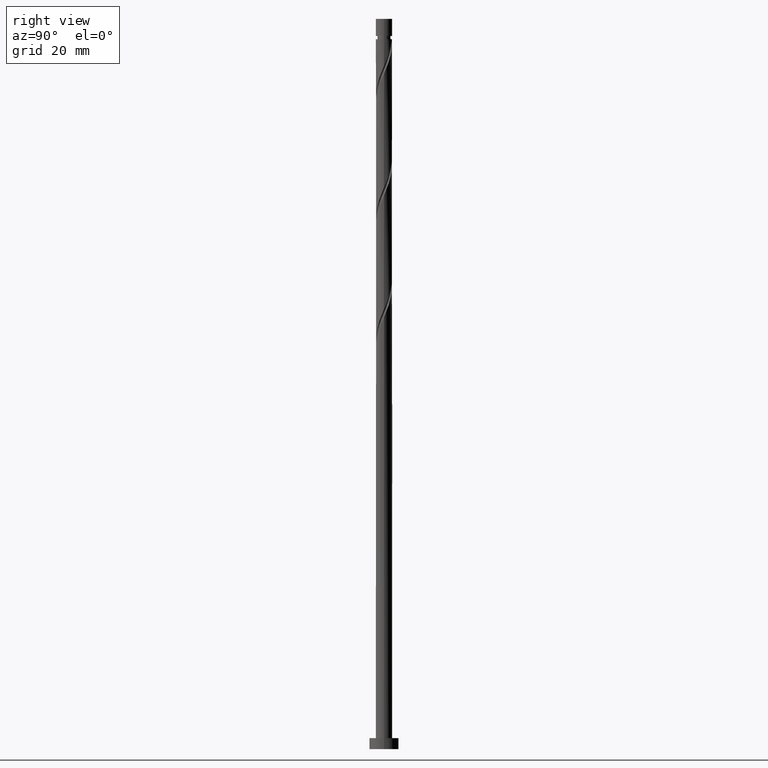
[diagram: clean part render]
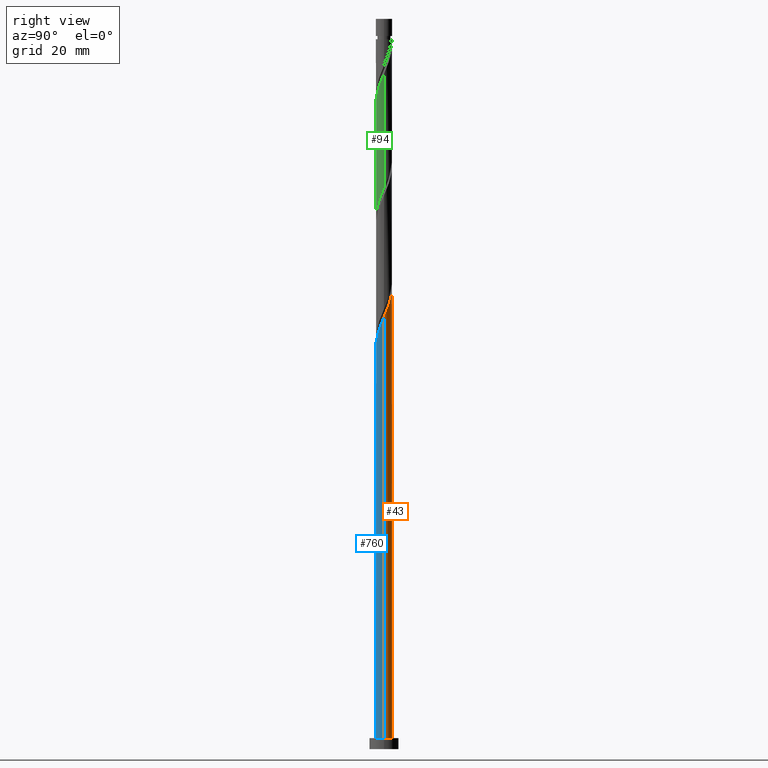
[diagram: same view with three faces highlighted in distinct colors, each labeled with its STEP entity id]
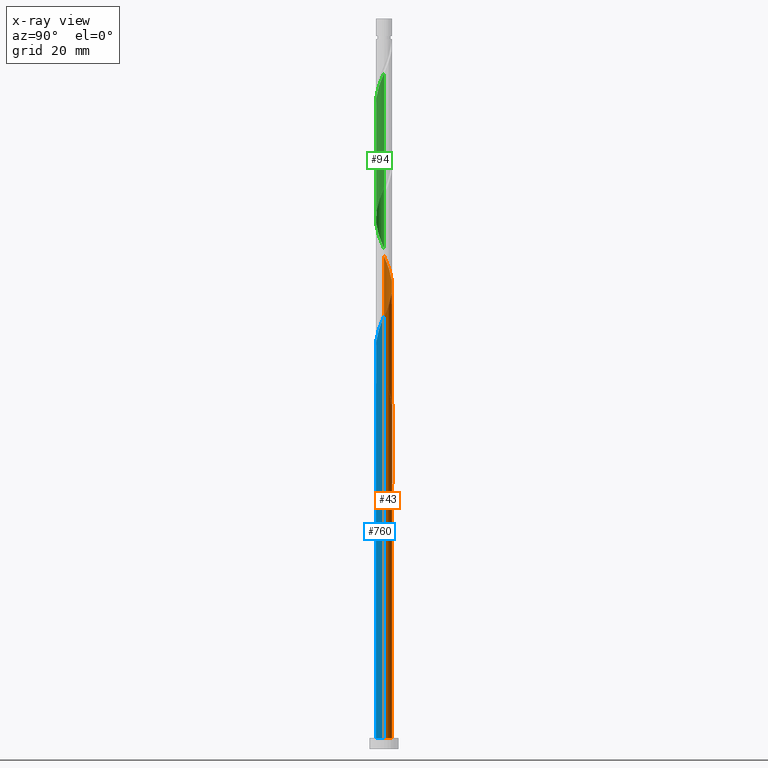
[diagram: x-ray of the same camera — body ghosted, the three highlighted faces saturated]
A machine part, right view with three faces highlighted in distinct colors.
The next image is the same camera in x-ray (body ghosted, the three faces saturated) — at least one of them is partly hidden behind the body in this view.
Their STEP definitions:

[orange] entity #43 — the highlighted cylindrical surface (edge-blend (fillet) strip) has radius 2.25 mm, axis along (-0, -0, -1).
#4 = EDGE_CURVE ( 'NONE', #91, #1153, #141, .T. ) ;
#7 = CARTESIAN_POINT ( 'NONE',  ( -2.245751211229821465, 0.1382081664005538058, 101.3486371687581027 ) ) ;
#17 = CARTESIAN_POINT ( 'NONE',  ( -1.712186416157698066, 1.489517657058026634, 97.87641494653587415 ) ) ;
#38 = CARTESIAN_POINT ( 'NONE',  ( -0.4338669223188778012, 2.227555760936211104, 96.48752605764698842 ) ) ;
#43 = ADVANCED_FACE ( 'NONE', ( #878 ), #231, .T. ) ;
#50 = VERTEX_POINT ( 'NONE', #916 ) ;
#53 = CARTESIAN_POINT ( 'NONE',  ( 0.9956171203984893747, 2.039360616451145525, 124.2653038354247315 ) ) ;
#54 = CARTESIAN_POINT ( 'NONE',  ( -2.205000000000000071, 0.4477443466979803000, 102.7375260576470168 ) ) ;
#61 = CARTESIAN_POINT ( 'NONE',  ( -2.250000000000000444, 3.155248517603818449E-15, 103.8010927128570557 ) ) ;
#69 = CARTESIAN_POINT ( 'NONE',  ( 0.7147420213586845872, 2.133458188693679425, 124.9597482798691885 ) ) ;
#91 = VERTEX_POINT ( 'NONE', #1047 ) ;
#111 = DIRECTION ( 'NONE',  ( 0.000000000000000000, 0.000000000000000000, 1.000000000000000000 ) ) ;
#141 = LINE ( 'NONE', #1427, #1426 ) ;
#144 = VERTEX_POINT ( 'NONE', #188 ) ;
#155 = CARTESIAN_POINT ( 'NONE',  ( -2.250000000000003109, 4.321643704206142327E-15, 101.6739594024369069 ) ) ;
#175 = CARTESIAN_POINT ( 'NONE',  ( 1.489517657058027522, 1.712186416157696955, 122.8764149465358599 ) ) ;
#187 = VECTOR ( 'NONE', #877, 1000.000000000000000 ) ;
#188 = CARTESIAN_POINT ( 'NONE',  ( -2.250000000000003109, 4.321643704206142327E-15, 101.6739594024369069 ) ) ;
#193 = CARTESIAN_POINT ( 'NONE',  ( -1.490257978641319703, 1.685713841995699847, 130.5153038354247599 ) ) ;
#201 = CARTESIAN_POINT ( 'NONE',  ( -2.245751211229821465, 0.1382081664005538058, 134.6819705020914171 ) ) ;
#231 = CYLINDRICAL_SURFACE ( 'NONE', #993, 2.250000000000000000 ) ;
#273 = CARTESIAN_POINT ( 'NONE',  ( -1.003183822501564793, 2.013981682704975462, 95.79308161320253134 ) ) ;
#284 = CARTESIAN_POINT ( 'NONE',  ( -0.7380381038781885783, 2.146053338476577199, 95.09863716875806006 ) ) ;
#324 = CARTESIAN_POINT ( 'NONE',  ( 1.242567388728257782, 1.875773516304421795, 123.5708593909803312 ) ) ;
#331 = CARTESIAN_POINT ( 'NONE',  ( -0.1574505895177698012, 2.263946661523429160, 127.0430816132025171 ) ) ;
#341 = CARTESIAN_POINT ( 'NONE',  ( -2.227555760936213769, 0.4338669223188788560, 133.9875260576469600 ) ) ;
#355 = CARTESIAN_POINT ( 'NONE',  ( 2.250000000000000000, 2.755455298081544285E-16, 3.000000000000000000 ) ) ;
#387 = EDGE_CURVE ( 'NONE', #50, #1310, #1132, .T. ) ;
#426 = CARTESIAN_POINT ( 'NONE',  ( -2.039360616451145525, 0.9956171203984882645, 99.26530383542474567 ) ) ;
#433 = CARTESIAN_POINT ( 'NONE',  ( -2.227555760936213769, 0.4338669223188788560, 100.6541927243136740 ) ) ;
#443 = CARTESIAN_POINT ( 'NONE',  ( -1.875773516304422239, 1.242567388728257116, 98.57085939098031702 ) ) ;
#444 = VERTEX_POINT ( 'NONE', #1025 ) ;
#455 = CARTESIAN_POINT ( 'NONE',  ( 1.881910026933373947, 1.268329541124939785, 121.4875260576469742 ) ) ;
#470 = CARTESIAN_POINT ( 'NONE',  ( -1.268329541124940896, 1.881910026933373725, 129.8208593909802744 ) ) ;
#490 = CARTESIAN_POINT ( 'NONE',  ( -2.250000000000000000, 0.000000000000000000, 200.0000000000000000 ) ) ;
#539 = ORIENTED_EDGE ( 'NONE', *, *, #387, .T. ) ;
#542 = VECTOR ( 'NONE', #998, 1000.000000000000000 ) ;
#579 = CARTESIAN_POINT ( 'NONE',  ( -0.7147420213586817006, 2.133458188693676760, 97.18197050209145971 ) ) ;
#596 = CARTESIAN_POINT ( 'NONE',  ( -1.712186416157698066, 1.489517657058026634, 131.2097482798691885 ) ) ;
#598 = CARTESIAN_POINT ( 'NONE',  ( -2.146053338476573202, 0.7380381038781881342, 102.0430816132025313 ) ) ;
#617 = CARTESIAN_POINT ( 'NONE',  ( 0.000000000000000000, 0.000000000000000000, 200.0000000000000000 ) ) ;
#686 = EDGE_LOOP ( 'NONE', ( #872, #1076, #759, #1342, #1420, #539, #1039, #1011 ) ) ;
#703 = CARTESIAN_POINT ( 'NONE',  ( -1.489517657058022859, 1.712186416157696067, 99.26530383542478830 ) ) ;
#705 = CIRCLE ( 'NONE', #1441, 2.250000000000000000 ) ;
#706 = CARTESIAN_POINT ( 'NONE',  ( 2.250000000000003553, 5.009517788612656361E-16, 118.3406260691035783 ) ) ;
#708 = EDGE_CURVE ( 'NONE', #144, #775, #1240, .T. ) ;
#714 = CARTESIAN_POINT ( 'NONE',  ( -1.875773516304422239, 1.242567388728257116, 131.9041927243136172 ) ) ;
#759 = ORIENTED_EDGE ( 'NONE', *, *, #1561, .T. ) ;
#775 = VERTEX_POINT ( 'NONE', #967 ) ;
#836 = CARTESIAN_POINT ( 'NONE',  ( 2.250000000000003553, 0.2261335084333213619, 118.8740524382928498 ) ) ;
#845 = CARTESIAN_POINT ( 'NONE',  ( -0.4477443466979798004, 2.205000000000003624, 127.7375260576469742 ) ) ;
#851 = CARTESIAN_POINT ( 'NONE',  ( -2.250000000000002665, 0.06916939122976893672, 134.8441290477420580 ) ) ;
#872 = ORIENTED_EDGE ( 'NONE', *, *, #1166, .F. ) ;
#877 = DIRECTION ( 'NONE',  ( -0.000000000000000000, -0.000000000000000000, -1.000000000000000000 ) ) ;
#878 = FACE_OUTER_BOUND ( 'NONE', #686, .T. ) ;
#881 = CARTESIAN_POINT ( 'NONE',  ( -0.4477443466979799669, 2.205000000000003624, 94.40419272431365982 ) ) ;
#907 = AXIS2_PLACEMENT_3D ( 'NONE', #1261, #1424, #974 ) ;
#916 = CARTESIAN_POINT ( 'NONE',  ( -0.4477443466979799669, 2.205000000000003624, 94.40419272431365982 ) ) ;
#920 = CARTESIAN_POINT ( 'NONE',  ( 0.000000000000000000, 0.000000000000000000, 3.000000000000000000 ) ) ;
#962 = CARTESIAN_POINT ( 'NONE',  ( 0.4477443466979806330, 2.205000000000000071, 94.40419272431365982 ) ) ;
#967 = CARTESIAN_POINT ( 'NONE',  ( -2.250000000000000000, 0.000000000000000000, 3.000000000000000000 ) ) ;
#974 = DIRECTION ( 'NONE',  ( 0.000000000000000000, 1.000000000000000000, -1.850371707708594129E-14 ) ) ;
#979 = CARTESIAN_POINT ( 'NONE',  ( -2.039360616451145525, 0.9956171203984882645, 132.5986371687580743 ) ) ;
#982 = CARTESIAN_POINT ( 'NONE',  ( -1.881910026933370172, 1.268329541124939785, 100.6541927243136882 ) ) ;
#993 = AXIS2_PLACEMENT_3D ( 'NONE', #617, #1568, #1327 ) ;
#998 = DIRECTION ( 'NONE',  ( -0.000000000000000000, -0.000000000000000000, -1.000000000000000000 ) ) ;
#1011 = ORIENTED_EDGE ( 'NONE', *, *, #1464, .F. ) ;
#1022 = CARTESIAN_POINT ( 'NONE',  ( -2.250000000000000000, 0.000000000000000000, 200.0000000000000000 ) ) ;
#1025 = CARTESIAN_POINT ( 'NONE',  ( -2.250000000000003109, 4.321643704206142327E-15, 135.0072927357702497 ) ) ;
#1039 = ORIENTED_EDGE ( 'NONE', *, *, #1267, .F. ) ;
#1047 = CARTESIAN_POINT ( 'NONE',  ( 2.250000000000003109, 5.009517788612656361E-16, 118.3406260691035783 ) ) ;
#1076 = ORIENTED_EDGE ( 'NONE', *, *, #4, .T. ) ;
#1090 = CARTESIAN_POINT ( 'NONE',  ( 0.1574505895177722714, 2.263946661523425163, 95.09863716875808848 ) ) ;
#1093 = CARTESIAN_POINT ( 'NONE',  ( 2.013981682704975906, 1.003183822501563682, 120.7930816132025456 ) ) ;
#1101 = CARTESIAN_POINT ( 'NONE',  ( -0.9956171203984859330, 2.039360616451142416, 97.87641494653588836 ) ) ;
#1103 = CARTESIAN_POINT ( 'NONE',  ( 2.146053338476577643, 0.7380381038781878011, 120.0986371687580743 ) ) ;
#1113 = CARTESIAN_POINT ( 'NONE',  ( -2.013981682704971909, 1.003183822501563904, 101.3486371687581169 ) ) ;
#1132 = CIRCLE ( 'NONE', #907, 2.250000000000000000 ) ;
#1147 = LINE ( 'NONE', #1022, #187 ) ;
#1153 = VERTEX_POINT ( 'NONE', #355 ) ;
#1166 = EDGE_CURVE ( 'NONE', #91, #444, #1300, .T. ) ;
#1192 = CARTESIAN_POINT ( 'NONE',  ( -2.133458188693680313, 0.7147420213586839211, 99.95974827986920275 ) ) ;
#1233 = CARTESIAN_POINT ( 'NONE',  ( 1.685713841995700513, 1.490257978641318370, 122.1819705020914455 ) ) ;
#1235 = CARTESIAN_POINT ( 'NONE',  ( -2.249999999999999556, 0.2261335084333251089, 103.2676663436677984 ) ) ;
#1240 = LINE ( 'NONE', #490, #542 ) ;
#1252 = CARTESIAN_POINT ( 'NONE',  ( -2.250000000000003109, 4.321643704206142327E-15, 135.0072927357702497 ) ) ;
#1261 = CARTESIAN_POINT ( 'NONE',  ( 0.000000000000000000, 0.000000000000000000, 94.40419272431368825 ) ) ;
#1267 = EDGE_CURVE ( 'NONE', #1744, #1310, #1681, .T. ) ;
#1300 =( BOUNDED_CURVE ( )  B_SPLINE_CURVE ( 2, ( #706, #836, #1507, #1103, #1093, #455, #1233, #175, #324, #53, #69, #1658, #1516, #331, #845, #1392, #1380, #470, #193, #596, #714, #979, #1527, #341, #201, #851, #1252 ),
 .UNSPECIFIED., .F., .T. ) 
 B_SPLINE_CURVE_WITH_KNOTS ( ( 3, 2, 2, 2, 2, 2, 2, 2, 2, 2, 2, 2, 2, 3 ),
 ( 0.1795317669814462946, 0.1875000000000000000, 0.1979166666666666297, 0.2083333333333333703, 0.2187500000000000000, 0.2291666666666666297, 0.2395833333333333703, 0.2500000000000000000, 0.2604166666666666297, 0.2708333333333333703, 0.2812500000000000000, 0.2916666666666666297, 0.3020833333333333703, 0.3045317669814461836 ),
 .UNSPECIFIED. ) 
 CURVE ( )  GEOMETRIC_REPRESENTATION_ITEM ( )  RATIONAL_B_SPLINE_CURVE ( ( 0.9062941362546576007, 0.9031415850403619050, 0.9090909090909373713, 0.9013135103398557391, 0.9090909090909373713, 0.9013135103398557391, 0.9090909090909373713, 0.9013135103398557391, 0.9090909090909373713, 0.9013135103398557391, 0.9090909090909373713, 0.9013135103398557391, 0.9090909090909373713, 0.9013135103398557391, 0.9090909090909373713, 0.9013135103398557391, 0.9090909090909373713, 0.9013135103398557391, 0.9090909090909373713, 0.9013135103398557391, 0.9090909090909373713, 0.9013135103398557391, 0.9090909090909373713, 0.9013135103398557391, 0.9090909090909373713, 0.9072628343904312054, 0.9062941362546577118 ) ) 
 REPRESENTATION_ITEM ( '' )  );
#1310 = VERTEX_POINT ( 'NONE', #1388 ) ;
#1318 = DIRECTION ( 'NONE',  ( -0.000000000000000000, -0.000000000000000000, -1.000000000000000000 ) ) ;
#1327 = DIRECTION ( 'NONE',  ( -1.000000000000000000, 0.000000000000000000, 0.000000000000000000 ) ) ;
#1329 = CARTESIAN_POINT ( 'NONE',  ( -1.490257978641319703, 1.685713841995699847, 97.18197050209141707 ) ) ;
#1341 = CARTESIAN_POINT ( 'NONE',  ( -2.250000000000002665, 0.06916939122976951959, 101.5107957144087720 ) ) ;
#1342 = ORIENTED_EDGE ( 'NONE', *, *, #708, .F. ) ;
#1358 = CARTESIAN_POINT ( 'NONE',  ( -0.1382081664005526678, 2.245751211229818800, 95.79308161320255977 ) ) ;
#1360 =( BOUNDED_CURVE ( )  B_SPLINE_CURVE ( 2, ( #881, #284, #273, #1601, #1329, #17, #443, #426, #1192, #433, #7, #1341, #155 ),
 .UNSPECIFIED., .F., .T. ) 
 B_SPLINE_CURVE_WITH_KNOTS ( ( 3, 2, 2, 2, 2, 2, 3 ),
 ( 0.000000000000000000, 0.01041666666666662966, 0.02083333333333337034, 0.03125000000000000000, 0.04166666666666662966, 0.05208333333333337034, 0.05453176698144616280 ),
 .UNSPECIFIED. ) 
 CURVE ( )  GEOMETRIC_REPRESENTATION_ITEM ( )  RATIONAL_B_SPLINE_CURVE ( ( 0.9090909090909373713, 0.9013135103398557391, 0.9090909090909373713, 0.9013135103398557391, 0.9090909090909373713, 0.9013135103398557391, 0.9090909090909373713, 0.9013135103398557391, 0.9090909090909373713, 0.9013135103398557391, 0.9090909090909373713, 0.9072628343904312054, 0.9062941362546577118 ) ) 
 REPRESENTATION_ITEM ( '' )  );
#1380 = CARTESIAN_POINT ( 'NONE',  ( -1.003183822501564793, 2.013981682704975462, 129.1264149465358173 ) ) ;
#1388 = CARTESIAN_POINT ( 'NONE',  ( 0.4477443466979806330, 2.205000000000000071, 94.40419272431365982 ) ) ;
#1392 = CARTESIAN_POINT ( 'NONE',  ( -0.7380381038781885783, 2.146053338476577199, 128.4319705020913887 ) ) ;
#1406 = EDGE_CURVE ( 'NONE', #50, #144, #1360, .T. ) ;
#1420 = ORIENTED_EDGE ( 'NONE', *, *, #1406, .F. ) ;
#1424 = DIRECTION ( 'NONE',  ( -1.027162637006525975E-29, -1.541976423090496107E-14, -1.000000000000000000 ) ) ;
#1426 = VECTOR ( 'NONE', #1318, 1000.000000000000000 ) ;
#1427 = CARTESIAN_POINT ( 'NONE',  ( 2.250000000000000000, 2.755455298081544285E-16, 200.0000000000000000 ) ) ;
#1441 = AXIS2_PLACEMENT_3D ( 'NONE', #920, #111, #1583 ) ;
#1450 = CARTESIAN_POINT ( 'NONE',  ( -2.250000000000000000, 3.155248517603818449E-15, 103.8010927128570557 ) ) ;
#1464 = EDGE_CURVE ( 'NONE', #444, #1744, #1147, .T. ) ;
#1499 = CARTESIAN_POINT ( 'NONE',  ( -1.242567388728255118, 1.875773516304420019, 98.57085939098033123 ) ) ;
#1507 = CARTESIAN_POINT ( 'NONE',  ( 2.205000000000003624, 0.4477443466979798559, 119.4041927243136456 ) ) ;
#1516 = CARTESIAN_POINT ( 'NONE',  ( 0.1382081664005552768, 2.245751211229821465, 126.3486371687580743 ) ) ;
#1527 = CARTESIAN_POINT ( 'NONE',  ( -2.133458188693680313, 0.7147420213586839211, 133.2930816132025029 ) ) ;
#1529 = CARTESIAN_POINT ( 'NONE',  ( -1.685713841995696960, 1.490257978641317704, 99.95974827986924538 ) ) ;
#1561 = EDGE_CURVE ( 'NONE', #1153, #775, #705, .T. ) ;
#1568 = DIRECTION ( 'NONE',  ( -0.000000000000000000, -0.000000000000000000, -1.000000000000000000 ) ) ;
#1583 = DIRECTION ( 'NONE',  ( 1.000000000000000000, 0.000000000000000000, 0.000000000000000000 ) ) ;
#1601 = CARTESIAN_POINT ( 'NONE',  ( -1.268329541124940896, 1.881910026933373725, 96.48752605764698842 ) ) ;
#1658 = CARTESIAN_POINT ( 'NONE',  ( 0.4338669223188802437, 2.227555760936213769, 125.6541927243136314 ) ) ;
#1681 =( BOUNDED_CURVE ( )  B_SPLINE_CURVE ( 2, ( #61, #1235, #54, #598, #1113, #982, #1529, #703, #1499, #1101, #579, #38, #1358, #1090, #962 ),
 .UNSPECIFIED., .F., .T. ) 
 B_SPLINE_CURVE_WITH_KNOTS ( ( 3, 2, 2, 2, 2, 2, 2, 3 ),
 ( 0.9295317669814463502, 0.9375000000000000000, 0.9479166666666666297, 0.9583333333333333703, 0.9687500000000000000, 0.9791666666666666297, 0.9895833333333333703, 1.000000000000000000 ),
 .UNSPECIFIED. ) 
 CURVE ( )  GEOMETRIC_REPRESENTATION_ITEM ( )  RATIONAL_B_SPLINE_CURVE ( ( 0.9062941362546501622, 0.9031415850403544665, 0.9090909090909298218, 0.9013135103398483006, 0.9090909090909298218, 0.9013135103398483006, 0.9090909090909298218, 0.9013135103398483006, 0.9090909090909298218, 0.9013135103398483006, 0.9090909090909298218, 0.9013135103398483006, 0.9090909090909298218, 0.9013135103398483006, 0.9090909090909298218 ) ) 
 REPRESENTATION_ITEM ( '' )  );
#1744 = VERTEX_POINT ( 'NONE', #1450 ) ;

[blue] entity #760 — the highlighted cylindrical surface (edge-blend (fillet) strip) has radius 2.25 mm, axis along (-0, -0, -1).
#4 = EDGE_CURVE ( 'NONE', #91, #1153, #141, .T. ) ;
#55 = DIRECTION ( 'NONE',  ( -1.000000000000000000, 0.000000000000000000, 0.000000000000000000 ) ) ;
#91 = VERTEX_POINT ( 'NONE', #1047 ) ;
#141 = LINE ( 'NONE', #1427, #1426 ) ;
#144 = VERTEX_POINT ( 'NONE', #188 ) ;
#147 = CARTESIAN_POINT ( 'NONE',  ( -0.9956171203984888196, -2.039360616451145525, 107.5986371687581027 ) ) ;
#188 = CARTESIAN_POINT ( 'NONE',  ( -2.250000000000003109, 4.321643704206142327E-15, 101.6739594024369069 ) ) ;
#199 = CARTESIAN_POINT ( 'NONE',  ( -0.4338669223188790780, -2.227555760936213769, 108.9875260576469884 ) ) ;
#245 = CARTESIAN_POINT ( 'NONE',  ( 1.003183822501563904, -2.013981682704975906, 112.4597482798692027 ) ) ;
#263 = CARTESIAN_POINT ( 'NONE',  ( 2.250000000000003997, -0.06916939122976727139, 118.1774623810754434 ) ) ;
#282 = CARTESIAN_POINT ( 'NONE',  ( 0.7380381038781879122, -2.146053338476577643, 111.7653038354247741 ) ) ;
#288 = CARTESIAN_POINT ( 'NONE',  ( -1.489517657058026634, -1.712186416157697622, 106.2097482798691885 ) ) ;
#307 =( BOUNDED_CURVE ( )  B_SPLINE_CURVE ( 2, ( #1750, #1333, #1606, #927, #1474, #1524, #1378, #288, #429, #147, #1627, #199, #719, #763, #1673, #282, #245, #1591, #895, #1304, #650, #1164, #758, #1729, #1294, #263, #410 ),
 .UNSPECIFIED., .F., .T. ) 
 B_SPLINE_CURVE_WITH_KNOTS ( ( 3, 2, 2, 2, 2, 2, 2, 2, 2, 2, 2, 2, 2, 3 ),
 ( 0.05453176698144616280, 0.06250000000000000000, 0.07291666666666662966, 0.08333333333333337034, 0.09375000000000000000, 0.1041666666666666297, 0.1145833333333333703, 0.1250000000000000000, 0.1354166666666666297, 0.1458333333333333703, 0.1562500000000000000, 0.1666666666666666297, 0.1770833333333333703, 0.1795317669814462946 ),
 .UNSPECIFIED. ) 
 CURVE ( )  GEOMETRIC_REPRESENTATION_ITEM ( )  RATIONAL_B_SPLINE_CURVE ( ( 0.9062941362546577118, 0.9031415850403619050, 0.9090909090909373713, 0.9013135103398557391, 0.9090909090909373713, 0.9013135103398557391, 0.9090909090909373713, 0.9013135103398557391, 0.9090909090909373713, 0.9013135103398557391, 0.9090909090909373713, 0.9013135103398557391, 0.9090909090909373713, 0.9013135103398557391, 0.9090909090909373713, 0.9013135103398557391, 0.9090909090909373713, 0.9013135103398557391, 0.9090909090909373713, 0.9013135103398557391, 0.9090909090909373713, 0.9013135103398557391, 0.9090909090909373713, 0.9013135103398557391, 0.9090909090909373713, 0.9072628343904310944, 0.9062941362546576007 ) ) 
 REPRESENTATION_ITEM ( '' )  );
#351 = AXIS2_PLACEMENT_3D ( 'NONE', #1647, #359, #55 ) ;
#355 = CARTESIAN_POINT ( 'NONE',  ( 2.250000000000000000, 2.755455298081544285E-16, 3.000000000000000000 ) ) ;
#359 = DIRECTION ( 'NONE',  ( -0.000000000000000000, -0.000000000000000000, -1.000000000000000000 ) ) ;
#410 = CARTESIAN_POINT ( 'NONE',  ( 2.250000000000003553, 5.009517788612656361E-16, 118.3406260691035783 ) ) ;
#429 = CARTESIAN_POINT ( 'NONE',  ( -1.242567388728257116, -1.875773516304422239, 106.9041927243136456 ) ) ;
#434 = ORIENTED_EDGE ( 'NONE', *, *, #708, .T. ) ;
#490 = CARTESIAN_POINT ( 'NONE',  ( -2.250000000000000000, 0.000000000000000000, 200.0000000000000000 ) ) ;
#542 = VECTOR ( 'NONE', #998, 1000.000000000000000 ) ;
#581 = AXIS2_PLACEMENT_3D ( 'NONE', #1711, #905, #898 ) ;
#650 = CARTESIAN_POINT ( 'NONE',  ( 1.875773516304421573, -1.242567388728258004, 115.2375260576469742 ) ) ;
#708 = EDGE_CURVE ( 'NONE', #144, #775, #1240, .T. ) ;
#719 = CARTESIAN_POINT ( 'NONE',  ( -0.1382081664005539168, -2.245751211229821465, 109.6819705020914455 ) ) ;
#758 = CARTESIAN_POINT ( 'NONE',  ( 2.133458188693679869, -0.7147420213586845872, 116.6264149465358742 ) ) ;
#760 = ADVANCED_FACE ( 'NONE', ( #1114 ), #1362, .T. ) ;
#763 = CARTESIAN_POINT ( 'NONE',  ( 0.1574505895177711612, -2.263946661523429160, 110.3764149465358742 ) ) ;
#775 = VERTEX_POINT ( 'NONE', #967 ) ;
#782 = EDGE_LOOP ( 'NONE', ( #1189, #1723, #434, #1135 ) ) ;
#895 = CARTESIAN_POINT ( 'NONE',  ( 1.490257978641319259, -1.685713841995700069, 113.8486371687580885 ) ) ;
#898 = DIRECTION ( 'NONE',  ( 1.000000000000000000, 0.000000000000000000, 0.000000000000000000 ) ) ;
#905 = DIRECTION ( 'NONE',  ( 0.000000000000000000, 0.000000000000000000, 1.000000000000000000 ) ) ;
#927 = CARTESIAN_POINT ( 'NONE',  ( -2.146053338476577643, -0.7380381038781881342, 103.4319705020914171 ) ) ;
#967 = CARTESIAN_POINT ( 'NONE',  ( -2.250000000000000000, 0.000000000000000000, 3.000000000000000000 ) ) ;
#998 = DIRECTION ( 'NONE',  ( -0.000000000000000000, -0.000000000000000000, -1.000000000000000000 ) ) ;
#1047 = CARTESIAN_POINT ( 'NONE',  ( 2.250000000000003109, 5.009517788612656361E-16, 118.3406260691035783 ) ) ;
#1114 = FACE_OUTER_BOUND ( 'NONE', #782, .T. ) ;
#1135 = ORIENTED_EDGE ( 'NONE', *, *, #1703, .T. ) ;
#1153 = VERTEX_POINT ( 'NONE', #355 ) ;
#1164 = CARTESIAN_POINT ( 'NONE',  ( 2.039360616451145525, -0.9956171203984888196, 115.9319705020914171 ) ) ;
#1189 = ORIENTED_EDGE ( 'NONE', *, *, #4, .F. ) ;
#1240 = LINE ( 'NONE', #490, #542 ) ;
#1294 = CARTESIAN_POINT ( 'NONE',  ( 2.245751211229821465, -0.1382081664005551935, 118.0153038354247599 ) ) ;
#1304 = CARTESIAN_POINT ( 'NONE',  ( 1.712186416157697622, -1.489517657058026634, 114.5430816132025171 ) ) ;
#1318 = DIRECTION ( 'NONE',  ( -0.000000000000000000, -0.000000000000000000, -1.000000000000000000 ) ) ;
#1324 = EDGE_CURVE ( 'NONE', #144, #91, #307, .T. ) ;
#1333 = CARTESIAN_POINT ( 'NONE',  ( -2.250000000000003997, -0.2261335084333190582, 102.2073857716261500 ) ) ;
#1362 = CYLINDRICAL_SURFACE ( 'NONE', #351, 2.250000000000000000 ) ;
#1378 = CARTESIAN_POINT ( 'NONE',  ( -1.685713841995699847, -1.490257978641319259, 105.5153038354247457 ) ) ;
#1426 = VECTOR ( 'NONE', #1318, 1000.000000000000000 ) ;
#1427 = CARTESIAN_POINT ( 'NONE',  ( 2.250000000000000000, 2.755455298081544285E-16, 200.0000000000000000 ) ) ;
#1470 = CIRCLE ( 'NONE', #581, 2.250000000000000000 ) ;
#1474 = CARTESIAN_POINT ( 'NONE',  ( -2.013981682704975462, -1.003183822501564570, 104.1264149465358742 ) ) ;
#1524 = CARTESIAN_POINT ( 'NONE',  ( -1.881910026933373725, -1.268329541124940674, 104.8208593909802886 ) ) ;
#1591 = CARTESIAN_POINT ( 'NONE',  ( 1.268329541124939785, -1.881910026933373725, 113.1541927243136172 ) ) ;
#1606 = CARTESIAN_POINT ( 'NONE',  ( -2.205000000000003624, -0.4477443466979801334, 102.7375260576469742 ) ) ;
#1627 = CARTESIAN_POINT ( 'NONE',  ( -0.7147420213586841431, -2.133458188693679869, 108.2930816132025456 ) ) ;
#1647 = CARTESIAN_POINT ( 'NONE',  ( 0.000000000000000000, 0.000000000000000000, 200.0000000000000000 ) ) ;
#1673 = CARTESIAN_POINT ( 'NONE',  ( 0.4477443466979800779, -2.205000000000003624, 111.0708593909803170 ) ) ;
#1703 = EDGE_CURVE ( 'NONE', #775, #1153, #1470, .T. ) ;
#1711 = CARTESIAN_POINT ( 'NONE',  ( 0.000000000000000000, 0.000000000000000000, 3.000000000000000000 ) ) ;
#1723 = ORIENTED_EDGE ( 'NONE', *, *, #1324, .F. ) ;
#1729 = CARTESIAN_POINT ( 'NONE',  ( 2.227555760936213769, -0.4338669223188801882, 117.3208593909803170 ) ) ;
#1750 = CARTESIAN_POINT ( 'NONE',  ( -2.250000000000003109, 4.321643704206142327E-15, 101.6739594024369069 ) ) ;

[green] entity #94 — the highlighted cylindrical surface (edge-blend (fillet) strip) has radius 2.25 mm, axis along (-0, -0, -1).
#2 = CARTESIAN_POINT ( 'NONE',  ( 2.133458188693679869, -0.7147420213586845872, 183.2930816132025313 ) ) ;
#57 = CARTESIAN_POINT ( 'NONE',  ( 2.146053338476572314, -0.7380381038781896885, 152.0430816132025313 ) ) ;
#65 = EDGE_CURVE ( 'NONE', #400, #392, #177, .T. ) ;
#80 = CARTESIAN_POINT ( 'NONE',  ( 1.489517657058022859, -1.712186416157696289, 149.2653038354247315 ) ) ;
#83 = CARTESIAN_POINT ( 'NONE',  ( -2.250000000000002220, -0.2261335084333297996, 168.8740524382928641 ) ) ;
#84 = VERTEX_POINT ( 'NONE', #241 ) ;
#88 = CARTESIAN_POINT ( 'NONE',  ( 0.7380381038781879122, -2.146053338476577643, 178.4319705020914171 ) ) ;
#94 = ADVANCED_FACE ( 'NONE', ( #764 ), #1182, .T. ) ;
#95 = CARTESIAN_POINT ( 'NONE',  ( -0.1574505895177728820, -2.263946661523425163, 145.0986371687581311 ) ) ;
#97 = CARTESIAN_POINT ( 'NONE',  ( 1.875773516304421573, -1.242567388728258004, 181.9041927243136172 ) ) ;
#115 = CARTESIAN_POINT ( 'NONE',  ( 2.250000000000000000, 2.755455298081544285E-16, 200.0000000000000000 ) ) ;
#133 = CARTESIAN_POINT ( 'NONE',  ( 2.039360616451145525, -0.9956171203984888196, 182.5986371687580743 ) ) ;
#161 = CARTESIAN_POINT ( 'NONE',  ( -2.250000000000000000, 0.000000000000000000, 200.0000000000000000 ) ) ;
#177 =( BOUNDED_CURVE ( )  B_SPLINE_CURVE ( 2, ( #1550, #83, #1007, #887, #1273, #1190, #755, #1283, #1559, #1407, #1417, #372, #540, #626, #1265, #88, #221, #861, #1140, #1706, #97, #133, #2, #550, #660, #1055, #502 ),
 .UNSPECIFIED., .F., .T. ) 
 B_SPLINE_CURVE_WITH_KNOTS ( ( 3, 2, 2, 2, 2, 2, 2, 2, 2, 2, 2, 2, 2, 3 ),
 ( 0.5545317669814464612, 0.5625000000000000000, 0.5729166666666667407, 0.5833333333333332593, 0.5937500000000000000, 0.6041666666666667407, 0.6145833333333332593, 0.6250000000000000000, 0.6354166666666667407, 0.6458333333333332593, 0.6562500000000000000, 0.6666666666666667407, 0.6770833333333332593, 0.6795317669814466832 ),
 .UNSPECIFIED. ) 
 CURVE ( )  GEOMETRIC_REPRESENTATION_ITEM ( )  RATIONAL_B_SPLINE_CURVE ( ( 0.9062941362546576007, 0.9031415850403621270, 0.9090909090909373713, 0.9013135103398557391, 0.9090909090909373713, 0.9013135103398557391, 0.9090909090909373713, 0.9013135103398557391, 0.9090909090909373713, 0.9013135103398557391, 0.9090909090909373713, 0.9013135103398557391, 0.9090909090909373713, 0.9013135103398557391, 0.9090909090909373713, 0.9013135103398557391, 0.9090909090909373713, 0.9013135103398557391, 0.9090909090909373713, 0.9013135103398557391, 0.9090909090909373713, 0.9013135103398557391, 0.9090909090909373713, 0.9013135103398557391, 0.9090909090909373713, 0.9072628343904308723, 0.9062941362546574897 ) ) 
 REPRESENTATION_ITEM ( '' )  );
#221 = CARTESIAN_POINT ( 'NONE',  ( 1.003183822501563904, -2.013981682704975906, 179.1264149465359026 ) ) ;
#225 = ORIENTED_EDGE ( 'NONE', *, *, #226, .T. ) ;
#226 = EDGE_CURVE ( 'NONE', #400, #84, #683, .T. ) ;
#241 = CARTESIAN_POINT ( 'NONE',  ( -2.250000000000000000, 3.155248517603818449E-15, 137.1344260461904128 ) ) ;
#254 = CARTESIAN_POINT ( 'NONE',  ( -1.490257978641317926, -1.685713841995696738, 141.6264149465359026 ) ) ;
#274 = VERTEX_POINT ( 'NONE', #1205 ) ;
#318 = CARTESIAN_POINT ( 'NONE',  ( 2.205000000000000071, -0.4477443466979804665, 152.7375260576470737 ) ) ;
#326 = DIRECTION ( 'NONE',  ( -0.000000000000000000, -0.000000000000000000, -1.000000000000000000 ) ) ;
#343 = CARTESIAN_POINT ( 'NONE',  ( -2.250000000000000444, 3.155248517603818449E-15, 137.1344260461904128 ) ) ;
#372 = CARTESIAN_POINT ( 'NONE',  ( -0.4338669223188790780, -2.227555760936213769, 175.6541927243136172 ) ) ;
#380 = CARTESIAN_POINT ( 'NONE',  ( -0.4477443466979803000, -2.205000000000000071, 144.4041927243136740 ) ) ;
#392 = VERTEX_POINT ( 'NONE', #989 ) ;
#400 = VERTEX_POINT ( 'NONE', #857 ) ;
#440 = DIRECTION ( 'NONE',  ( -0.000000000000000000, -0.000000000000000000, -1.000000000000000000 ) ) ;
#461 = EDGE_CURVE ( 'NONE', #392, #274, #526, .T. ) ;
#466 = CARTESIAN_POINT ( 'NONE',  ( 0.7147420213586812565, -2.133458188693676760, 147.1819705020914739 ) ) ;
#502 = CARTESIAN_POINT ( 'NONE',  ( 2.250000000000003553, -2.467374433197277594E-16, 185.0072927357702497 ) ) ;
#526 = LINE ( 'NONE', #115, #1188 ) ;
#540 = CARTESIAN_POINT ( 'NONE',  ( -0.1382081664005539168, -2.245751211229821465, 176.3486371687581027 ) ) ;
#550 = CARTESIAN_POINT ( 'NONE',  ( 2.227555760936213769, -0.4338669223188801882, 183.9875260576469884 ) ) ;
#559 = CARTESIAN_POINT ( 'NONE',  ( -1.875773516304420019, -1.242567388728254896, 140.2375260576470453 ) ) ;
#626 = CARTESIAN_POINT ( 'NONE',  ( 0.1574505895177711612, -2.263946661523429160, 177.0430816132025029 ) ) ;
#649 = DIRECTION ( 'NONE',  ( -0.000000000000000000, -0.000000000000000000, -1.000000000000000000 ) ) ;
#660 = CARTESIAN_POINT ( 'NONE',  ( 2.245751211229821465, -0.1382081664005551935, 184.6819705020913887 ) ) ;
#683 = LINE ( 'NONE', #161, #751 ) ;
#690 = AXIS2_PLACEMENT_3D ( 'NONE', #1598, #326, #1373 ) ;
#715 = CARTESIAN_POINT ( 'NONE',  ( -2.249999999999999556, -0.06916939122976605014, 137.2975897342185760 ) ) ;
#728 = EDGE_CURVE ( 'NONE', #274, #84, #1558, .T. ) ;
#735 = CARTESIAN_POINT ( 'NONE',  ( 1.685713841995696738, -1.490257978641318592, 149.9597482798692454 ) ) ;
#751 = VECTOR ( 'NONE', #440, 1000.000000000000000 ) ;
#755 = CARTESIAN_POINT ( 'NONE',  ( -1.685713841995699847, -1.490257978641319259, 172.1819705020914171 ) ) ;
#764 = FACE_OUTER_BOUND ( 'NONE', #1577, .T. ) ;
#774 = CARTESIAN_POINT ( 'NONE',  ( -1.003183822501563904, -2.013981682704971909, 143.0153038354247315 ) ) ;
#857 = CARTESIAN_POINT ( 'NONE',  ( -2.250000000000003553, -1.196302755489589393E-15, 168.3406260691035925 ) ) ;
#861 = CARTESIAN_POINT ( 'NONE',  ( 1.268329541124939785, -1.881910026933373725, 179.8208593909802744 ) ) ;
#887 = CARTESIAN_POINT ( 'NONE',  ( -2.146053338476577643, -0.7380381038781881342, 170.0986371687580743 ) ) ;
#903 = ORIENTED_EDGE ( 'NONE', *, *, #728, .F. ) ;
#989 = CARTESIAN_POINT ( 'NONE',  ( 2.250000000000003553, -2.467374433197278087E-16, 185.0072927357702497 ) ) ;
#1007 = CARTESIAN_POINT ( 'NONE',  ( -2.205000000000003624, -0.4477443466979801334, 169.4041927243136456 ) ) ;
#1055 = CARTESIAN_POINT ( 'NONE',  ( 2.250000000000003997, -0.06916939122975387932, 184.8441290477421148 ) ) ;
#1122 = CARTESIAN_POINT ( 'NONE',  ( 1.881910026933369506, -1.268329541124940230, 150.6541927243136456 ) ) ;
#1140 = CARTESIAN_POINT ( 'NONE',  ( 1.490257978641319259, -1.685713841995700069, 180.5153038354247315 ) ) ;
#1151 = CARTESIAN_POINT ( 'NONE',  ( -1.712186416157696289, -1.489517657058022859, 140.9319705020914739 ) ) ;
#1182 = CYLINDRICAL_SURFACE ( 'NONE', #690, 2.250000000000000000 ) ;
#1188 = VECTOR ( 'NONE', #649, 1000.000000000000000 ) ;
#1190 = CARTESIAN_POINT ( 'NONE',  ( -1.881910026933373725, -1.268329541124940674, 171.4875260576469884 ) ) ;
#1205 = CARTESIAN_POINT ( 'NONE',  ( 2.250000000000000444, 2.594481600968068817E-15, 153.8010927128570700 ) ) ;
#1262 = CARTESIAN_POINT ( 'NONE',  ( 0.4338669223188763580, -2.227555760936211993, 146.4875260576470737 ) ) ;
#1265 = CARTESIAN_POINT ( 'NONE',  ( 0.4477443466979800779, -2.205000000000003624, 177.7375260576469884 ) ) ;
#1273 = CARTESIAN_POINT ( 'NONE',  ( -2.013981682704975462, -1.003183822501564570, 170.7930816132025313 ) ) ;
#1277 = ORIENTED_EDGE ( 'NONE', *, *, #65, .F. ) ;
#1283 = CARTESIAN_POINT ( 'NONE',  ( -1.489517657058026634, -1.712186416157697622, 172.8764149465358173 ) ) ;
#1364 = CARTESIAN_POINT ( 'NONE',  ( 2.013981682704971465, -1.003183822501565237, 151.3486371687581311 ) ) ;
#1368 = ORIENTED_EDGE ( 'NONE', *, *, #461, .F. ) ;
#1372 = CARTESIAN_POINT ( 'NONE',  ( -2.245751211229818800, -0.1382081664005524180, 137.4597482798692454 ) ) ;
#1373 = DIRECTION ( 'NONE',  ( -1.000000000000000000, 0.000000000000000000, 0.000000000000000000 ) ) ;
#1384 = CARTESIAN_POINT ( 'NONE',  ( 2.249999999999999556, -0.2261335084333253309, 153.2676663436678268 ) ) ;
#1407 = CARTESIAN_POINT ( 'NONE',  ( -0.9956171203984888196, -2.039360616451145525, 174.2653038354247315 ) ) ;
#1417 = CARTESIAN_POINT ( 'NONE',  ( -0.7147420213586841431, -2.133458188693679869, 174.9597482798691885 ) ) ;
#1447 = CARTESIAN_POINT ( 'NONE',  ( -1.268329541124939785, -1.881910026933370172, 142.3208593909803312 ) ) ;
#1495 = CARTESIAN_POINT ( 'NONE',  ( -2.133458188693676760, -0.7147420213586815896, 138.8486371687581311 ) ) ;
#1520 = CARTESIAN_POINT ( 'NONE',  ( 0.1382081664005517796, -2.245751211229819688, 145.7930816132025598 ) ) ;
#1535 = CARTESIAN_POINT ( 'NONE',  ( -0.7380381038781885783, -2.146053338476573202, 143.7097482798692454 ) ) ;
#1550 = CARTESIAN_POINT ( 'NONE',  ( -2.250000000000003553, -1.196302755489589393E-15, 168.3406260691035925 ) ) ;
#1558 =( BOUNDED_CURVE ( )  B_SPLINE_CURVE ( 2, ( #1670, #1384, #318, #57, #1364, #1122, #735, #80, #1662, #1650, #466, #1262, #1520, #95, #380, #1535, #774, #1447, #254, #1151, #559, #1620, #1495, #1596, #1372, #715, #343 ),
 .UNSPECIFIED., .F., .T. ) 
 B_SPLINE_CURVE_WITH_KNOTS ( ( 3, 2, 2, 2, 2, 2, 2, 2, 2, 2, 2, 2, 2, 3 ),
 ( 0.5545317669814463502, 0.5625000000000000000, 0.5729166666666666297, 0.5833333333333333703, 0.5937500000000000000, 0.6041666666666666297, 0.6145833333333333703, 0.6250000000000000000, 0.6354166666666666297, 0.6458333333333333703, 0.6562500000000000000, 0.6666666666666666297, 0.6770833333333333703, 0.6795317669814462391 ),
 .UNSPECIFIED. ) 
 CURVE ( )  GEOMETRIC_REPRESENTATION_ITEM ( )  RATIONAL_B_SPLINE_CURVE ( ( 0.9062941362546501622, 0.9031415850403544665, 0.9090909090909298218, 0.9013135103398483006, 0.9090909090909298218, 0.9013135103398483006, 0.9090909090909298218, 0.9013135103398483006, 0.9090909090909298218, 0.9013135103398483006, 0.9090909090909298218, 0.9013135103398483006, 0.9090909090909298218, 0.9013135103398483006, 0.9090909090909298218, 0.9013135103398483006, 0.9090909090909298218, 0.9013135103398483006, 0.9090909090909298218, 0.9013135103398483006, 0.9090909090909298218, 0.9013135103398483006, 0.9090909090909298218, 0.9013135103398483006, 0.9090909090909298218, 0.9072628343904236559, 0.9062941362546501622 ) ) 
 REPRESENTATION_ITEM ( '' )  );
#1559 = CARTESIAN_POINT ( 'NONE',  ( -1.242567388728257116, -1.875773516304422239, 173.5708593909803028 ) ) ;
#1577 = EDGE_LOOP ( 'NONE', ( #1368, #1277, #225, #903 ) ) ;
#1596 = CARTESIAN_POINT ( 'NONE',  ( -2.227555760936211993, -0.4338669223188771351, 138.1541927243136456 ) ) ;
#1598 = CARTESIAN_POINT ( 'NONE',  ( 0.000000000000000000, 0.000000000000000000, 200.0000000000000000 ) ) ;
#1620 = CARTESIAN_POINT ( 'NONE',  ( -2.039360616451142416, -0.9956171203984852669, 139.5430816132025882 ) ) ;
#1650 = CARTESIAN_POINT ( 'NONE',  ( 0.9956171203984852669, -2.039360616451142416, 147.8764149465359026 ) ) ;
#1662 = CARTESIAN_POINT ( 'NONE',  ( 1.242567388728253563, -1.875773516304420241, 148.5708593909803312 ) ) ;
#1670 = CARTESIAN_POINT ( 'NONE',  ( 2.250000000000000444, 2.594481600968068817E-15, 153.8010927128570700 ) ) ;
#1706 = CARTESIAN_POINT ( 'NONE',  ( 1.712186416157697622, -1.489517657058026634, 181.2097482798691885 ) ) ;